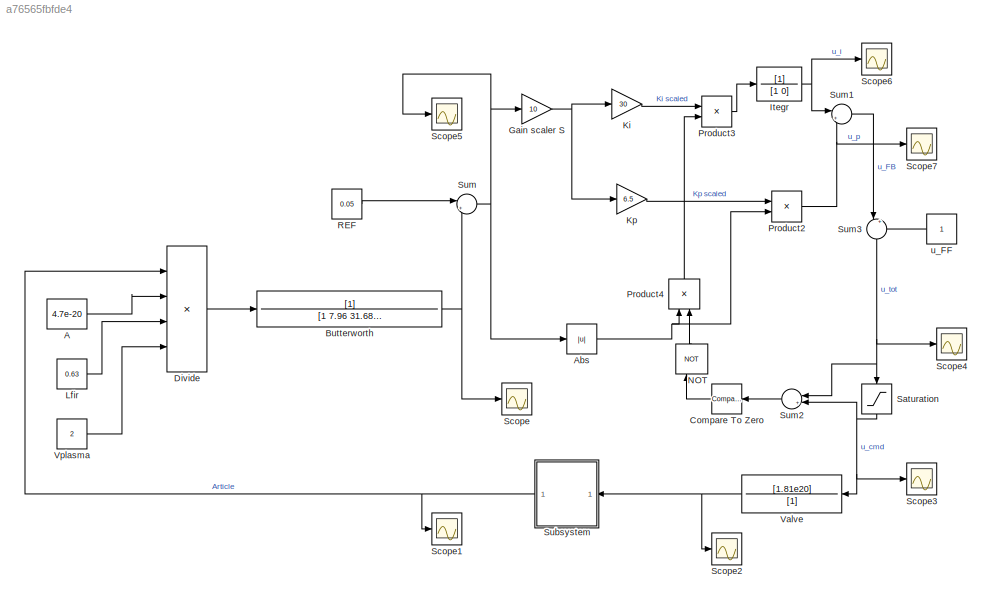
MODEL slx_a76565fbfde4
KIND model
CONFIG AbsTol = auto
CONFIG EnableMultiTasking = off
CONFIG FixedStep = auto
CONFIG MaxStep = auto
CONFIG MinStep = auto
CONFIG RelTol = 1e-3
CONFIG SampleTimeConstraint = Unconstrained
CONFIG SolverName = VariableStepAuto
CONFIG StartTime = 0.0
CONFIG StopTime = 100
BLOCK [Constant] A
  Value = 4.7e-20
BLOCK [Abs] Abs
  SaturateOnIntegerOverflow = off
BLOCK [TransferFcn] Butterworth
  Denominator = [1 7.96 31.68 63.04]
BLOCK [Reference] Compare To Zero  REF=simulink/Logic and Bit
Operations/Compare
To Zero
  SourceBlock = simulink/Logic and Bit\nOperations/Compare\nTo Zero
  SourceType = Compare To Zero
BLOCK [Product] Divide
  Inputs = ***/
BLOCK [Gain] Gain scaler S
  Gain = 10
BLOCK [TransferFcn] Itegr
  Denominator = [1 0]
BLOCK [Gain] Ki
  Gain = 30
BLOCK [Gain] Kp
  Gain = 6.5
BLOCK [Constant] Lfir
  Value = 0.63
BLOCK [Logic] NOT
  AllPortsSameDT = off
  IconShape = distinctive
  NameLocation = right
  Operator = NOT
  OutDataTypeStr = boolean
BLOCK [Product] Product2
BLOCK [Product] Product3
BLOCK [Product] Product4
  NameLocation = right
BLOCK [Constant] REF
  Value = 0.05
BLOCK [Saturate] Saturation
  LowerLimit = 0
  NameLocation = left
  UpperLimit = 10
BLOCK [Scope] Scope
  Floating = off
  NumInputPorts = 1
  ScopeSpecificationString = Simulink.scopes.TimeScopeBlockCfg('CurrentConfiguration', extmgr.ConfigurationSet(extmgr.Configuration('Core','General UI',true,'FigureColor',[1 1 1]),extmgr.Configuration('Core','Source UI',true),extmgr.Configuration('Sources','WiredSimulink',true),extmgr.Configuration('Visuals','Time Domain',true,'SerializedDisplays',{struct('MinYLimReal','-0.00795','MaxYLimReal','0.07151','YLabelReal','','MinYL...<+1541ch>
BLOCK [Scope] Scope1
  Floating = off
  NumInputPorts = 1
  ScopeSpecificationString = Simulink.scopes.TimeScopeBlockCfg('CurrentConfiguration', extmgr.ConfigurationSet(extmgr.Configuration('Core','General UI',true),extmgr.Configuration('Core','Source UI',true),extmgr.Configuration('Sources','WiredSimulink',true,'DataLoggingVariableName','ScopeData1'),extmgr.Configuration('Visuals','Time Domain',true,'SerializedDisplays',{struct('MinYLimReal','-34544280828554964992.00000','MaxYLimRe...<+1690ch>
BLOCK [Scope] Scope2
  Floating = off
  NumInputPorts = 1
  ScopeSpecificationString = Simulink.scopes.TimeScopeBlockCfg('CurrentConfiguration', extmgr.ConfigurationSet(extmgr.Configuration('Core','General UI',true),extmgr.Configuration('Core','Source UI',true),extmgr.Configuration('Sources','WiredSimulink',true,'DataLoggingVariableName','ScopeData2'),extmgr.Configuration('Visuals','Time Domain',true,'SerializedDisplays',{struct('MinYLimReal','-93893749999999942656.00000','MaxYLimRe...<+1664ch>
BLOCK [Scope] Scope3
  Floating = off
  NumInputPorts = 1
  ScopeSpecificationString = Simulink.scopes.TimeScopeBlockCfg('CurrentConfiguration', extmgr.ConfigurationSet(extmgr.Configuration('Core','General UI',true),extmgr.Configuration('Core','Source UI',true),extmgr.Configuration('Sources','WiredSimulink',true,'DataLoggingVariableName','ScopeData3'),extmgr.Configuration('Visuals','Time Domain',true,'SerializedDisplays',{struct('MinYLimReal','-0.28849','MaxYLimReal','4.22145','YLab...<+1525ch>
BLOCK [Scope] Scope4
  Floating = off
  NumInputPorts = 1
  ScopeSpecificationString = Simulink.scopes.TimeScopeBlockCfg('CurrentConfiguration', extmgr.ConfigurationSet(extmgr.Configuration('Core','General UI',true),extmgr.Configuration('Core','Source UI',true),extmgr.Configuration('Sources','WiredSimulink',true,'DataLoggingVariableName','ScopeData4'),extmgr.Configuration('Visuals','Time Domain',true,'SerializedDisplays',{struct('MinYLimReal','-0.12683','MaxYLimReal','1.40151','YLab...<+1525ch>
BLOCK [Scope] Scope5
  Floating = off
  NumInputPorts = 1
  ScopeSpecificationString = Simulink.scopes.TimeScopeBlockCfg('CurrentConfiguration', extmgr.ConfigurationSet(extmgr.Configuration('Core','General UI',true),extmgr.Configuration('Core','Source UI',true),extmgr.Configuration('Sources','WiredSimulink',true,'DataLoggingVariableName','ScopeData5'),extmgr.Configuration('Visuals','Time Domain',true,'SerializedDisplays',{struct('MinYLimReal','-0.06186','MaxYLimReal','0.11798','YLab...<+1504ch>
BLOCK [Scope] Scope6
  Floating = off
  NumInputPorts = 1
  ScopeSpecificationString = Simulink.scopes.TimeScopeBlockCfg('CurrentConfiguration', extmgr.ConfigurationSet(extmgr.Configuration('Core','General UI',true),extmgr.Configuration('Core','Source UI',true),extmgr.Configuration('Sources','WiredSimulink',true,'DataLoggingVariableName','ScopeData6'),extmgr.Configuration('Visuals','Time Domain',true,'SerializedDisplays',{struct('MinYLimReal','-1.24991','MaxYLimReal','11.24919','YLa...<+1508ch>
BLOCK [Scope] Scope7
  Floating = off
  NumInputPorts = 1
  ScopeSpecificationString = Simulink.scopes.TimeScopeBlockCfg('CurrentConfiguration', extmgr.ConfigurationSet(extmgr.Configuration('Core','General UI',true),extmgr.Configuration('Core','Source UI',true),extmgr.Configuration('Sources','WiredSimulink',true,'DataLoggingVariableName','ScopeData1'),extmgr.Configuration('Visuals','Time Domain',true,'SerializedDisplays',{struct('MinYLimReal','-0.22202','MaxYLimReal','0.74689','YLab...<+1504ch>
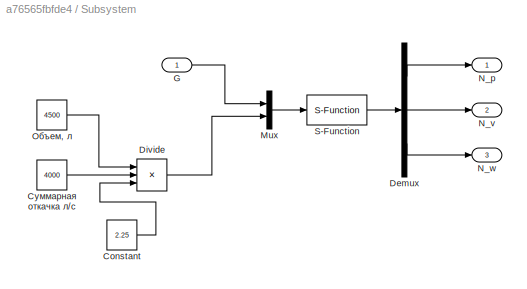
BLOCK [SubSystem] Subsystem
BLOCK [Constant] Subsystem/Constant
  Value = 2.25
BLOCK [Demux] Subsystem/Demux
  Outputs = 3
BLOCK [Product] Subsystem/Divide
  Inputs = *//
BLOCK [Inport] Subsystem/G
BLOCK [Mux] Subsystem/Mux
  DisplayOption = bar
  Inputs = 2
BLOCK [Outport] Subsystem/N_p
BLOCK [Outport] Subsystem/N_v
  Port = 2
BLOCK [Outport] Subsystem/N_w
  Port = 3
BLOCK [S-Function] Subsystem/S-Function
  EnableBusSupport = off
  FunctionName = Sfunction_model_from_article
  Parameters = 0.018, 0.01, 0.283, 0.041, 0, 0, 2.5e+18
  SFcnIsStateOwnerBlock = off
  SFunctionDeploymentMode = off
BLOCK [Constant] Subsystem/Объем, л
  Value = 4500
BLOCK [Constant] Subsystem/Суммарная откачка л//с
  Value = 4000
BLOCK [Sum] Sum
  Inputs = |+-
BLOCK [Sum] Sum1
  Inputs = |++
BLOCK [Sum] Sum2
  Inputs = |+-
BLOCK [Sum] Sum3
  Inputs = |++
  NameLocation = left
BLOCK [TransferFcn] Valve
  Denominator = [1]
  Numerator = [1.81e20]
BLOCK [Constant] Vplasma
  Value = 2
BLOCK [Constant] u_FF
LINE A:1 -> Divide:2
NET Abs:1 -> Product2:2, Product4:1
NET Butterworth:1 -> Scope:1, Sum:2
LINE Compare To Zero:1 -> NOT:1
LINE Divide:1 -> Butterworth:1
NET Gain scaler S:1 -> Ki:1, Kp:1
NET Itegr:1 -> Scope6:1, Sum1:1
LINE Ki:1 -> Product3:1
LINE Kp:1 -> Product2:1
LINE Lfir:1 -> Divide:3
LINE NOT:1 -> Product4:2
NET Product2:1 -> Scope7:1, Sum1:2
LINE Product3:1 -> Itegr:1
LINE Product4:1 -> Product3:2
LINE REF:1 -> Sum:1
NET Saturation:1 -> Scope3:1, Sum2:2, Valve:1
LINE Subsystem/Constant:1 -> Subsystem/Divide:3
LINE Subsystem/Demux:1 -> Subsystem/N_p:1
LINE Subsystem/Demux:2 -> Subsystem/N_v:1
LINE Subsystem/Demux:3 -> Subsystem/N_w:1
LINE Subsystem/Divide:1 -> Subsystem/Mux:2
LINE Subsystem/G:1 -> Subsystem/Mux:1
LINE Subsystem/Mux:1 -> Subsystem/S-Function:1
LINE Subsystem/S-Function:1 -> Subsystem/Demux:1
LINE Subsystem/Объем, л:1 -> Subsystem/Divide:1
LINE Subsystem/Суммарная откачка л//с:1 -> Subsystem/Divide:2
NET Subsystem:1 -> Divide:1, Scope1:1
LINE Sum1:1 -> Sum3:1
LINE Sum2:1 -> Compare To Zero:1
NET Sum3:1 -> Saturation:1, Scope4:1, Sum2:1
NET Sum:1 -> Abs:1, Gain scaler S:1, Scope5:1
NET Valve:1 -> Scope2:1, Subsystem:1
LINE Vplasma:1 -> Divide:4
LINE u_FF:1 -> Sum3:2
note: NET lines group one-source signal fan-out (src -> all destinations, sorted); 1:1 wires keep LINE
